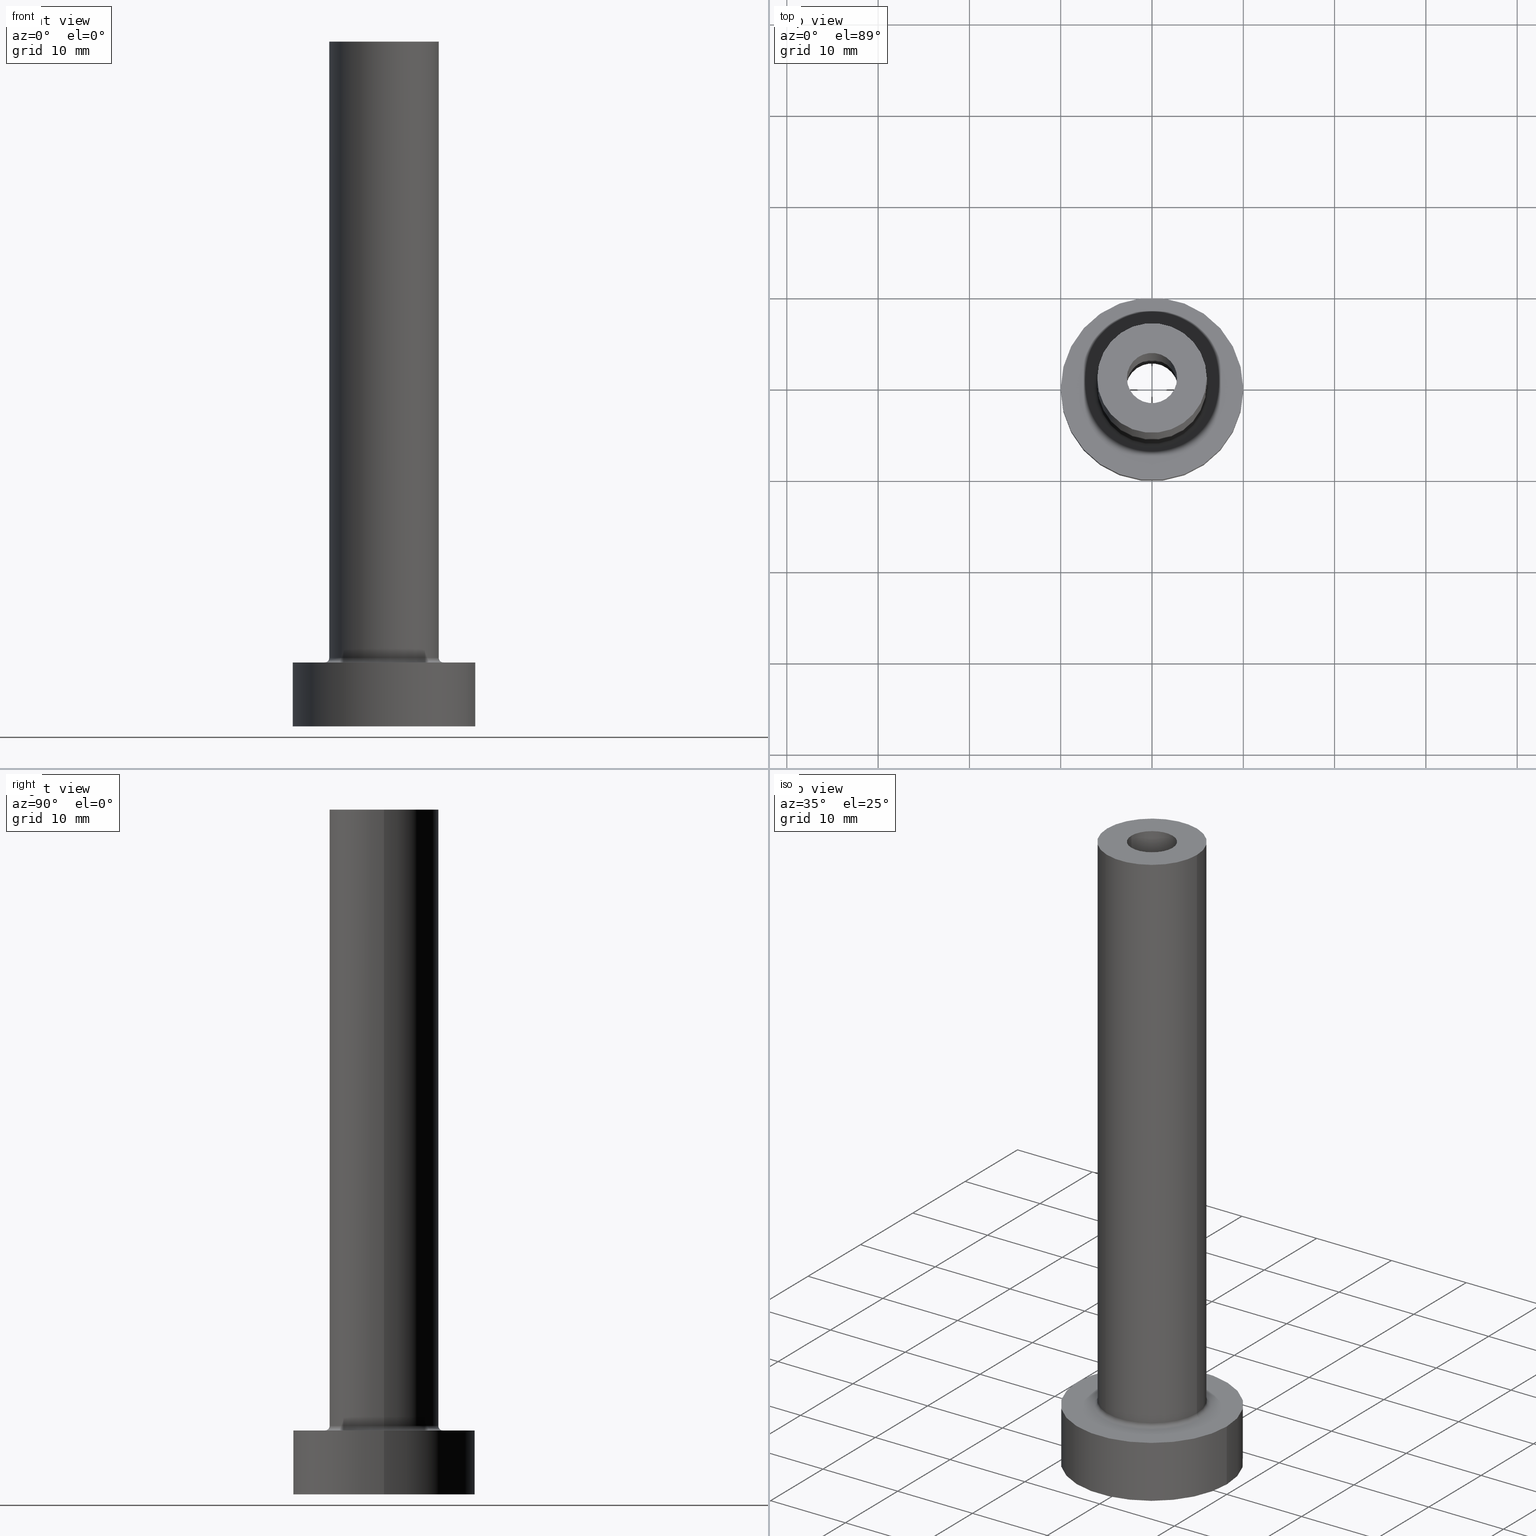
[diagram: canonical four-view strip — front | top / right | iso, engineering-drawing reading convention]
A machine part, canonical four-view strip (front | top / right | iso — engineering-drawing reading convention). The complete STEP part file that produces these views, byte-faithful:
ISO-10303-21;
HEADER;
FILE_DESCRIPTION (( 'STEP AP203' ),
    '1' );
FILE_NAME ('0d5d.STEP',
    '2023-02-13T15:56:50',
    ( '' ),
    ( '' ),
    'SwSTEP 2.0',
    'SolidWorks 2019',
    '' );
FILE_SCHEMA (( 'CONFIG_CONTROL_DESIGN' ));
ENDSEC;

DATA;
#1 = EDGE_LOOP ( 'NONE', ( #352, #125, #88, #289 ) ) ;
#2 = AXIS2_PLACEMENT_3D ( 'NONE', #388, #446, #242 ) ;
#3 = APPLICATION_PROTOCOL_DEFINITION ( 'international standard', 'config_control_design', 1994, #118 ) ;
#4 = PERSON_AND_ORGANIZATION ( #186, #110 ) ;
#5 = LINE ( 'NONE', #12, #45 ) ;
#6 = AXIS2_PLACEMENT_3D ( 'NONE', #36, #260, #403 ) ;
#7 = DIRECTION ( 'NONE',  ( 1.000000000000000000, 0.000000000000000000, 0.000000000000000000 ) ) ;
#8 = CC_DESIGN_PERSON_AND_ORGANIZATION_ASSIGNMENT ( #333, #188, ( #153 ) ) ;
#9 = CARTESIAN_POINT ( 'NONE',  ( -6.000000000000000888, 0.000000000000000000, 75.00000000000001421 ) ) ;
#10 = CARTESIAN_POINT ( 'NONE',  ( 0.000000000000000000, 0.000000000000000000, 0.000000000000000000 ) ) ;
#11 = ORIENTED_EDGE ( 'NONE', *, *, #293, .T. ) ;
#12 = CARTESIAN_POINT ( 'NONE',  ( 2.750000000000000000, 3.367778697655220519E-16, 75.00000000000001421 ) ) ;
#13 = AXIS2_PLACEMENT_3D ( 'NONE', #104, #395, #292 ) ;
#14 = PLANE ( 'NONE',  #278 ) ;
#15 = EDGE_CURVE ( 'NONE', #272, #179, #75, .T. ) ;
#16 = ADVANCED_FACE ( 'NONE', ( #239 ), #246, .F. ) ;
#17 = DIRECTION ( 'NONE',  ( -0.000000000000000000, -0.000000000000000000, -1.000000000000000000 ) ) ;
#18 = CIRCLE ( 'NONE', #313, 6.000000000000000888 ) ;
#19 = DIRECTION ( 'NONE',  ( 1.000000000000000000, 0.000000000000000000, 0.000000000000000000 ) ) ;
#20 = ORIENTED_EDGE ( 'NONE', *, *, #297, .F. ) ;
#21 = CC_DESIGN_PERSON_AND_ORGANIZATION_ASSIGNMENT ( #4, #43, ( #319 ) ) ;
#22 = ADVANCED_FACE ( 'NONE', ( #210 ), #346, .T. ) ;
#23 = EDGE_LOOP ( 'NONE', ( #342, #413 ) ) ;
#24 = PRODUCT_RELATED_PRODUCT_CATEGORY ( 'detail', '', ( #408 ) ) ;
#25 = DATE_AND_TIME ( #345, #55 ) ;
#26 = VERTEX_POINT ( 'NONE', #315 ) ;
#27 = DIRECTION ( 'NONE',  ( -0.000000000000000000, -0.000000000000000000, -1.000000000000000000 ) ) ;
#28 = CARTESIAN_POINT ( 'NONE',  ( 0.000000000000000000, 0.000000000000000000, 7.000000000000000000 ) ) ;
#29 = VERTEX_POINT ( 'NONE', #449 ) ;
#30 = AXIS2_PLACEMENT_3D ( 'NONE', #330, #244, #58 ) ;
#31 = VERTEX_POINT ( 'NONE', #382 ) ;
#32 = ORIENTED_EDGE ( 'NONE', *, *, #428, .F. ) ;
#33 = CALENDAR_DATE ( 2023, 13, 2 ) ;
#34 = ORIENTED_EDGE ( 'NONE', *, *, #375, .T. ) ;
#35 = APPROVAL_ROLE ( '' ) ;
#36 = CARTESIAN_POINT ( 'NONE',  ( 0.000000000000000000, 0.000000000000000000, 75.00000000000001421 ) ) ;
#37 = DIRECTION ( 'NONE',  ( -0.000000000000000000, -0.000000000000000000, -1.000000000000000000 ) ) ;
#38 = DATE_TIME_ROLE ( 'classification_date' ) ;
#39 = PLANE ( 'NONE',  #421 ) ;
#40 = DIRECTION ( 'NONE',  ( -0.000000000000000000, -0.000000000000000000, -1.000000000000000000 ) ) ;
#41 = CIRCLE ( 'NONE', #262, 10.00000000000000000 ) ;
#42 = DIRECTION ( 'NONE',  ( 1.000000000000000000, 0.000000000000000000, -0.000000000000000000 ) ) ;
#43 = PERSON_AND_ORGANIZATION_ROLE ( 'creator' ) ;
#44 = COORDINATED_UNIVERSAL_TIME_OFFSET ( 1, 0, .AHEAD. ) ;
#45 = VECTOR ( 'NONE', #369, 1000.000000000000000 ) ;
#46 = DIRECTION ( 'NONE',  ( -1.000000000000000000, 0.000000000000000000, 0.000000000000000000 ) ) ;
#47 = VECTOR ( 'NONE', #154, 1000.000000000000000 ) ;
#48 = EDGE_CURVE ( 'NONE', #271, #264, #454, .T. ) ;
#49 = CALENDAR_DATE ( 2023, 13, 2 ) ;
#50 = CARTESIAN_POINT ( 'NONE',  ( -2.750000000000000000, 0.000000000000000000, 75.00000000000001421 ) ) ;
#51 = DIRECTION ( 'NONE',  ( 0.000000000000000000, 0.000000000000000000, 1.000000000000000000 ) ) ;
#52 = CARTESIAN_POINT ( 'NONE',  ( 0.000000000000000000, 0.000000000000000000, 7.000000000000000000 ) ) ;
#53 = ORIENTED_EDGE ( 'NONE', *, *, #384, .T. ) ;
#54 = CC_DESIGN_DATE_AND_TIME_ASSIGNMENT ( #25, #163, ( #153 ) ) ;
#55 = LOCAL_TIME ( 16, 56, 50.00000000000000000, #331 ) ;
#56 = EDGE_CURVE ( 'NONE', #374, #427, #197, .T. ) ;
#57 = ORIENTED_EDGE ( 'NONE', *, *, #375, .F. ) ;
#58 = DIRECTION ( 'NONE',  ( -1.000000000000000000, 0.000000000000000000, 0.000000000000000000 ) ) ;
#59 = ORIENTED_EDGE ( 'NONE', *, *, #81, .T. ) ;
#60 = DIRECTION ( 'NONE',  ( 1.000000000000000000, 0.000000000000000000, 0.000000000000000000 ) ) ;
#61 = ORIENTED_EDGE ( 'NONE', *, *, #56, .F. ) ;
#62 = ADVANCED_FACE ( 'NONE', ( #74 ), #219, .F. ) ;
#63 = EDGE_CURVE ( 'NONE', #427, #374, #174, .T. ) ;
#64 = AXIS2_PLACEMENT_3D ( 'NONE', #66, #347, #248 ) ;
#65 = DIRECTION ( 'NONE',  ( 1.000000000000000000, 0.000000000000000000, 0.000000000000000000 ) ) ;
#66 = CARTESIAN_POINT ( 'NONE',  ( 0.000000000000000000, 0.000000000000000000, 7.500000000000007105 ) ) ;
#67 = CIRCLE ( 'NONE', #156, 0.5000000000000004441 ) ;
#68 = PERSON_AND_ORGANIZATION_ROLE ( 'design_supplier' ) ;
#69 = DIRECTION ( 'NONE',  ( 1.000000000000000000, 0.000000000000000000, 0.000000000000000000 ) ) ;
#70 = CYLINDRICAL_SURFACE ( 'NONE', #155, 10.00000000000000000 ) ;
#71 = APPROVAL_STATUS ( 'not_yet_approved' ) ;
#72 = DIRECTION ( 'NONE',  ( 1.000000000000000000, 0.000000000000000000, 0.000000000000000000 ) ) ;
#73 = VERTEX_POINT ( 'NONE', #50 ) ;
#74 = FACE_OUTER_BOUND ( 'NONE', #306, .T. ) ;
#75 = CIRCLE ( 'NONE', #182, 2.899999999999999911 ) ;
#76 = CARTESIAN_POINT ( 'NONE',  ( 0.000000000000000000, 0.000000000000000000, 75.00000000000001421 ) ) ;
#77 = EDGE_CURVE ( 'NONE', #271, #427, #67, .T. ) ;
#78 = CYLINDRICAL_SURFACE ( 'NONE', #406, 2.899999999999999911 ) ;
#79 = CLOSED_SHELL ( 'NONE', ( #112, #410, #16, #241, #276, #422, #434, #238, #22, #460, #391, #243, #339, #62 ) ) ;
#80 = DIRECTION ( 'NONE',  ( -1.000000000000000000, 1.224646799147351482E-16, 0.000000000000000000 ) ) ;
#81 = EDGE_CURVE ( 'NONE', #29, #196, #5, .T. ) ;
#82 = EDGE_CURVE ( 'NONE', #179, #204, #437, .T. ) ;
#83 = CIRCLE ( 'NONE', #294, 2.750000000000000000 ) ;
#84 = APPROVAL_DATE_TIME ( #368, #261 ) ;
#85 = CYLINDRICAL_SURFACE ( 'NONE', #414, 10.00000000000000000 ) ;
#86 = DIRECTION ( 'NONE',  ( -0.000000000000000000, -0.000000000000000000, -1.000000000000000000 ) ) ;
#87 = CARTESIAN_POINT ( 'NONE',  ( 10.00000000000000000, 1.224646799147353256E-15, 7.000000000000000000 ) ) ;
#88 = ORIENTED_EDGE ( 'NONE', *, *, #82, .T. ) ;
#89 = EDGE_CURVE ( 'NONE', #73, #29, #283, .T. ) ;
#90 = EDGE_CURVE ( 'NONE', #26, #240, #168, .T. ) ;
#91 = ORIENTED_EDGE ( 'NONE', *, *, #351, .F. ) ;
#92 = UNCERTAINTY_MEASURE_WITH_UNIT (LENGTH_MEASURE( 1.000000000000000082E-05 ), #137, 'distance_accuracy_value', 'NONE');
#93 = EDGE_CURVE ( 'NONE', #240, #148, #404, .T. ) ;
#94 = ORIENTED_EDGE ( 'NONE', *, *, #202, .T. ) ;
#95 = APPLICATION_CONTEXT ( 'configuration controlled 3d designs of mechanical parts and assemblies' ) ;
#96 = AXIS2_PLACEMENT_3D ( 'NONE', #52, #269, #354 ) ;
#97 = ORIENTED_EDGE ( 'NONE', *, *, #191, .T. ) ;
#98 = VERTEX_POINT ( 'NONE', #337 ) ;
#99 = CARTESIAN_POINT ( 'NONE',  ( 0.000000000000000000, 0.000000000000000000, 38.20243866176397063 ) ) ;
#100 = ORIENTED_EDGE ( 'NONE', *, *, #181, .F. ) ;
#101 = LINE ( 'NONE', #171, #411 ) ;
#102 = ORIENTED_EDGE ( 'NONE', *, *, #191, .F. ) ;
#103 = LOCAL_TIME ( 16, 56, 50.00000000000000000, #44 ) ;
#104 = CARTESIAN_POINT ( 'NONE',  ( 0.000000000000000000, 0.000000000000000000, 0.000000000000000000 ) ) ;
#105 = DIRECTION ( 'NONE',  ( 1.000000000000000000, 0.000000000000000000, 0.000000000000000000 ) ) ;
#106 = CARTESIAN_POINT ( 'NONE',  ( 0.000000000000000000, 0.000000000000000000, 38.20243866176397063 ) ) ;
#107 = MECHANICAL_CONTEXT ( 'NONE', #118, 'mechanical' ) ;
#108 = VECTOR ( 'NONE', #113, 1000.000000000000000 ) ;
#109 = EDGE_LOOP ( 'NONE', ( #304, #338 ) ) ;
#110 = ORGANIZATION ( 'NEUR�EN�', 'NEUR�EN�', '' ) ;
#111 = CARTESIAN_POINT ( 'NONE',  ( 10.00000000000000000, 1.224646799147353256E-15, 7.000000000000000000 ) ) ;
#112 = ADVANCED_FACE ( 'NONE', ( #135 ), #185, .F. ) ;
#113 = DIRECTION ( 'NONE',  ( -0.000000000000000000, -0.000000000000000000, -1.000000000000000000 ) ) ;
#114 = DIRECTION ( 'NONE',  ( 1.000000000000000000, 0.000000000000000000, 0.000000000000000000 ) ) ;
#115 = AXIS2_PLACEMENT_3D ( 'NONE', #247, #27, #165 ) ;
#116 = CIRCLE ( 'NONE', #420, 6.000000000000000888 ) ;
#117 = DIRECTION ( 'NONE',  ( 0.000000000000000000, 0.000000000000000000, 1.000000000000000000 ) ) ;
#118 = APPLICATION_CONTEXT ( 'configuration controlled 3d designs of mechanical parts and assemblies' ) ;
#119 = AXIS2_PLACEMENT_3D ( 'NONE', #183, #142, #80 ) ;
#120 = DIRECTION ( 'NONE',  ( 1.000000000000000000, 0.000000000000000000, 0.000000000000000000 ) ) ;
#121 = ORIENTED_EDGE ( 'NONE', *, *, #438, .T. ) ;
#122 = SECURITY_CLASSIFICATION_LEVEL ( 'unclassified' ) ;
#123 = VERTEX_POINT ( 'NONE', #457 ) ;
#124 = CARTESIAN_POINT ( 'NONE',  ( 0.000000000000000000, 0.000000000000000000, 30.00000000000001421 ) ) ;
#125 = ORIENTED_EDGE ( 'NONE', *, *, #15, .T. ) ;
#126 = DIRECTION ( 'NONE',  ( 0.000000000000000000, 0.000000000000000000, 1.000000000000000000 ) ) ;
#127 = DESIGN_CONTEXT ( 'detailed design', #95, 'design' ) ;
#128 = CARTESIAN_POINT ( 'NONE',  ( 0.000000000000000000, 0.000000000000000000, 30.00000000000001421 ) ) ;
#129 = DIRECTION ( 'NONE',  ( -0.000000000000000000, -0.000000000000000000, -1.000000000000000000 ) ) ;
#130 = CARTESIAN_POINT ( 'NONE',  ( 0.000000000000000000, 0.000000000000000000, 0.000000000000000000 ) ) ;
#131 = ORIENTED_EDGE ( 'NONE', *, *, #307, .T. ) ;
#132 = CIRCLE ( 'NONE', #226, 2.750000000000000000 ) ;
#133 = EDGE_LOOP ( 'NONE', ( #389, #376, #442, #61 ) ) ;
#134 = EDGE_CURVE ( 'NONE', #179, #272, #432, .T. ) ;
#135 = FACE_OUTER_BOUND ( 'NONE', #334, .T. ) ;
#136 = VECTOR ( 'NONE', #141, 1000.000000000000000 ) ;
#137 =( LENGTH_UNIT ( ) NAMED_UNIT ( * ) SI_UNIT ( .MILLI., .METRE. ) );
#138 = LINE ( 'NONE', #9, #136 ) ;
#139 = EDGE_CURVE ( 'NONE', #123, #204, #355, .T. ) ;
#140 = AXIS2_PLACEMENT_3D ( 'NONE', #263, #86, #356 ) ;
#141 = DIRECTION ( 'NONE',  ( -0.000000000000000000, -0.000000000000000000, -1.000000000000000000 ) ) ;
#142 = DIRECTION ( 'NONE',  ( 1.224646799147353207E-16, 1.000000000000000000, -0.000000000000000000 ) ) ;
#143 = CARTESIAN_POINT ( 'NONE',  ( 0.000000000000000000, 0.000000000000000000, 7.500000000000007105 ) ) ;
#144 = AXIS2_PLACEMENT_3D ( 'NONE', #160, #209, #120 ) ;
#145 = CARTESIAN_POINT ( 'NONE',  ( -10.00000000000000000, 0.000000000000000000, 7.000000000000000000 ) ) ;
#146 = APPROVAL_ROLE ( '' ) ;
#147 = DATE_AND_TIME ( #253, #373 ) ;
#148 = VERTEX_POINT ( 'NONE', #314 ) ;
#149 = CIRCLE ( 'NONE', #326, 2.899999999999999911 ) ;
#150 = DIRECTION ( 'NONE',  ( 1.000000000000000000, 0.000000000000000000, 0.000000000000000000 ) ) ;
#151 = CARTESIAN_POINT ( 'NONE',  ( 0.000000000000000000, 0.000000000000000000, 7.000000000000000000 ) ) ;
#152 = PERSON_AND_ORGANIZATION_ROLE ( 'design_owner' ) ;
#153 = PRODUCT_DEFINITION ( 'NEZN�M�', '', #319, #127 ) ;
#154 = DIRECTION ( 'NONE',  ( -0.000000000000000000, -0.000000000000000000, -1.000000000000000000 ) ) ;
#155 = AXIS2_PLACEMENT_3D ( 'NONE', #28, #166, #383 ) ;
#156 = AXIS2_PLACEMENT_3D ( 'NONE', #300, #232, #394 ) ;
#157 = ORIENTED_EDGE ( 'NONE', *, *, #202, .F. ) ;
#158 = CARTESIAN_POINT ( 'NONE',  ( -2.899999999999999911, 0.000000000000000000, 30.00000000000001421 ) ) ;
#159 = VERTEX_POINT ( 'NONE', #194 ) ;
#160 = CARTESIAN_POINT ( 'NONE',  ( 0.000000000000000000, 0.000000000000000000, 75.00000000000001421 ) ) ;
#161 = AXIS2_PLACEMENT_3D ( 'NONE', #316, #251, #349 ) ;
#162 = LOCAL_TIME ( 16, 56, 50.00000000000000000, #215 ) ;
#163 = DATE_TIME_ROLE ( 'creation_date' ) ;
#164 = PERSON_AND_ORGANIZATION ( #186, #110 ) ;
#165 = DIRECTION ( 'NONE',  ( -1.000000000000000000, 0.000000000000000000, 0.000000000000000000 ) ) ;
#166 = DIRECTION ( 'NONE',  ( -0.000000000000000000, -0.000000000000000000, -1.000000000000000000 ) ) ;
#167 = EDGE_LOOP ( 'NONE', ( #237, #381 ) ) ;
#168 = CIRCLE ( 'NONE', #96, 10.00000000000000000 ) ;
#169 = CIRCLE ( 'NONE', #144, 6.000000000000000888 ) ;
#170 = ORIENTED_EDGE ( 'NONE', *, *, #297, .T. ) ;
#171 = CARTESIAN_POINT ( 'NONE',  ( -2.750000000000000000, 0.000000000000000000, 75.00000000000001421 ) ) ;
#172 = EDGE_CURVE ( 'NONE', #159, #148, #41, .T. ) ;
#173 = CARTESIAN_POINT ( 'NONE',  ( 0.000000000000000000, 0.000000000000000000, 0.000000000000000000 ) ) ;
#174 = CIRCLE ( 'NONE', #317, 6.500000000000000888 ) ;
#175 = TOROIDAL_SURFACE ( 'NONE', #64, 6.500000000000000888, 0.5000000000000000000 ) ;
#176 = PERSON_AND_ORGANIZATION ( #186, #110 ) ;
#177 = CIRCLE ( 'NONE', #245, 10.00000000000000000 ) ;
#178 = ORIENTED_EDGE ( 'NONE', *, *, #93, .T. ) ;
#179 = VERTEX_POINT ( 'NONE', #158 ) ;
#180 = CARTESIAN_POINT ( 'NONE',  ( 0.000000000000000000, 0.000000000000000000, 7.000000000000000000 ) ) ;
#181 = EDGE_CURVE ( 'NONE', #31, #271, #335, .T. ) ;
#182 = AXIS2_PLACEMENT_3D ( 'NONE', #386, #458, #419 ) ;
#183 = CARTESIAN_POINT ( 'NONE',  ( -6.500000000000000888, 7.960204194457796463E-16, 7.500000000000007105 ) ) ;
#184 = LINE ( 'NONE', #145, #108 ) ;
#185 = CYLINDRICAL_SURFACE ( 'NONE', #30, 2.750000000000000000 ) ;
#186 = PERSON ( 'NEUR�EN�', 'NEUR�EN�', 'NEUR�EN�', ('NEUR�EN�'), ('NEUR�EN�'), ('NEUR�EN�') ) ;
#187 = APPROVAL_PERSON_ORGANIZATION ( #310, #348, #358 ) ;
#188 = PERSON_AND_ORGANIZATION_ROLE ( 'creator' ) ;
#189 = PERSON_AND_ORGANIZATION ( #186, #110 ) ;
#190 = CARTESIAN_POINT ( 'NONE',  ( -2.899999999999999911, 0.000000000000000000, 0.000000000000000000 ) ) ;
#191 = EDGE_CURVE ( 'NONE', #98, #196, #132, .T. ) ;
#192 = ORIENTED_EDGE ( 'NONE', *, *, #93, .F. ) ;
#193 = AXIS2_PLACEMENT_3D ( 'NONE', #76, #117, #363 ) ;
#194 = CARTESIAN_POINT ( 'NONE',  ( -10.00000000000000000, 0.000000000000000000, 0.000000000000000000 ) ) ;
#195 = CARTESIAN_POINT ( 'NONE',  ( 2.899999999999999911, 3.551475717527323832E-16, 30.00000000000001421 ) ) ;
#196 = VERTEX_POINT ( 'NONE', #235 ) ;
#197 = CIRCLE ( 'NONE', #423, 6.500000000000000888 ) ;
#198 = DIRECTION ( 'NONE',  ( -1.000000000000000000, 0.000000000000000000, 0.000000000000000000 ) ) ;
#199 = APPROVAL_PERSON_ORGANIZATION ( #189, #261, #146 ) ;
#200 = CC_DESIGN_SECURITY_CLASSIFICATION ( #273, ( #319 ) ) ;
#201 = ORIENTED_EDGE ( 'NONE', *, *, #438, .F. ) ;
#202 = EDGE_CURVE ( 'NONE', #196, #98, #83, .T. ) ;
#203 = DIRECTION ( 'NONE',  ( 1.000000000000000000, 0.000000000000000000, 0.000000000000000000 ) ) ;
#204 = VERTEX_POINT ( 'NONE', #190 ) ;
#205 = VERTEX_POINT ( 'NONE', #279 ) ;
#206 = VECTOR ( 'NONE', #439, 1000.000000000000000 ) ;
#207 = ORIENTED_EDGE ( 'NONE', *, *, #81, .F. ) ;
#208 = MANIFOLD_SOLID_BREP ( 'Odebrat vysunut�m4', #79 ) ;
#209 = DIRECTION ( 'NONE',  ( 0.000000000000000000, 0.000000000000000000, 1.000000000000000000 ) ) ;
#210 = FACE_OUTER_BOUND ( 'NONE', #445, .T. ) ;
#211 = FACE_OUTER_BOUND ( 'NONE', #322, .T. ) ;
#212 = CARTESIAN_POINT ( 'NONE',  ( 0.000000000000000000, 0.000000000000000000, 7.000000000000000000 ) ) ;
#213 = DIRECTION ( 'NONE',  ( 0.000000000000000000, 0.000000000000000000, -1.000000000000000000 ) ) ;
#214 = COORDINATED_UNIVERSAL_TIME_OFFSET ( 1, 0, .AHEAD. ) ;
#215 = COORDINATED_UNIVERSAL_TIME_OFFSET ( 1, 0, .AHEAD. ) ;
#216 = ORIENTED_EDGE ( 'NONE', *, *, #90, .T. ) ;
#217 = DIRECTION ( 'NONE',  ( 0.000000000000000000, 0.000000000000000000, 1.000000000000000000 ) ) ;
#218 =( GEOMETRIC_REPRESENTATION_CONTEXT ( 3 ) GLOBAL_UNCERTAINTY_ASSIGNED_CONTEXT ( ( #92 ) ) GLOBAL_UNIT_ASSIGNED_CONTEXT ( ( #137, #390, #353 ) ) REPRESENTATION_CONTEXT ( 'NONE', 'WORKASPACE' ) );
#219 = CYLINDRICAL_SURFACE ( 'NONE', #6, 2.750000000000000000 ) ;
#220 = CARTESIAN_POINT ( 'NONE',  ( -2.899999999999999911, 0.000000000000000000, 38.20243866176397063 ) ) ;
#221 = FACE_OUTER_BOUND ( 'NONE', #23, .T. ) ;
#222 = CARTESIAN_POINT ( 'NONE',  ( 0.000000000000000000, 0.000000000000000000, 7.000000000000000000 ) ) ;
#223 = AXIS2_PLACEMENT_3D ( 'NONE', #452, #288, #69 ) ;
#224 = VECTOR ( 'NONE', #303, 1000.000000000000000 ) ;
#225 = FACE_BOUND ( 'NONE', #280, .T. ) ;
#226 = AXIS2_PLACEMENT_3D ( 'NONE', #128, #51, #448 ) ;
#227 = DIRECTION ( 'NONE',  ( 0.000000000000000000, 0.000000000000000000, 1.000000000000000000 ) ) ;
#228 = PERSON_AND_ORGANIZATION ( #186, #110 ) ;
#229 = CARTESIAN_POINT ( 'NONE',  ( 0.000000000000000000, 0.000000000000000000, 7.000000000000000000 ) ) ;
#230 = CC_DESIGN_PERSON_AND_ORGANIZATION_ASSIGNMENT ( #228, #152, ( #408 ) ) ;
#231 = APPROVAL_STATUS ( 'not_yet_approved' ) ;
#232 = DIRECTION ( 'NONE',  ( 0.000000000000000000, -1.000000000000000000, 0.000000000000000000 ) ) ;
#233 = CARTESIAN_POINT ( 'NONE',  ( 6.000000000000000888, 7.347880794884120722E-16, 75.00000000000001421 ) ) ;
#234 = EDGE_CURVE ( 'NONE', #204, #123, #149, .T. ) ;
#235 = CARTESIAN_POINT ( 'NONE',  ( 2.750000000000000000, 3.367778697655220519E-16, 30.00000000000001421 ) ) ;
#236 = CARTESIAN_POINT ( 'NONE',  ( -6.000000000000000888, 0.000000000000000000, 7.500000000000007105 ) ) ;
#237 = ORIENTED_EDGE ( 'NONE', *, *, #89, .F. ) ;
#238 = ADVANCED_FACE ( 'NONE', ( #301, #221 ), #318, .F. ) ;
#239 = FACE_OUTER_BOUND ( 'NONE', #378, .T. ) ;
#240 = VERTEX_POINT ( 'NONE', #111 ) ;
#241 = ADVANCED_FACE ( 'NONE', ( #433 ), #291, .T. ) ;
#242 = DIRECTION ( 'NONE',  ( 1.000000000000000000, 0.000000000000000000, 0.000000000000000000 ) ) ;
#243 = ADVANCED_FACE ( 'NONE', ( #398 ), #78, .F. ) ;
#244 = DIRECTION ( 'NONE',  ( 0.000000000000000000, 0.000000000000000000, -1.000000000000000000 ) ) ;
#245 = AXIS2_PLACEMENT_3D ( 'NONE', #180, #325, #7 ) ;
#246 = TOROIDAL_SURFACE ( 'NONE', #360, 6.500000000000000888, 0.5000000000000000000 ) ;
#247 = CARTESIAN_POINT ( 'NONE',  ( 0.000000000000000000, 0.000000000000000000, 75.00000000000001421 ) ) ;
#248 = DIRECTION ( 'NONE',  ( 1.000000000000000000, 0.000000000000000000, 0.000000000000000000 ) ) ;
#249 = EDGE_LOOP ( 'NONE', ( #344, #444 ) ) ;
#250 = EDGE_CURVE ( 'NONE', #264, #374, #401, .T. ) ;
#251 = DIRECTION ( 'NONE',  ( 0.000000000000000000, 0.000000000000000000, 1.000000000000000000 ) ) ;
#252 = AXIS2_PLACEMENT_3D ( 'NONE', #173, #37, #19 ) ;
#253 = CALENDAR_DATE ( 2023, 13, 2 ) ;
#254 = APPROVAL_DATE_TIME ( #287, #299 ) ;
#255 = ORIENTED_EDGE ( 'NONE', *, *, #134, .T. ) ;
#256 = FACE_OUTER_BOUND ( 'NONE', #311, .T. ) ;
#257 = DIRECTION ( 'NONE',  ( 0.000000000000000000, 0.000000000000000000, 1.000000000000000000 ) ) ;
#258 = PLANE ( 'NONE',  #455 ) ;
#259 = SHAPE_DEFINITION_REPRESENTATION ( #341, #461 ) ;
#260 = DIRECTION ( 'NONE',  ( 0.000000000000000000, 0.000000000000000000, -1.000000000000000000 ) ) ;
#261 = APPROVAL ( #231, 'NEUR�EN�' ) ;
#262 = AXIS2_PLACEMENT_3D ( 'NONE', #451, #418, #203 ) ;
#263 = CARTESIAN_POINT ( 'NONE',  ( 0.000000000000000000, 0.000000000000000000, 75.00000000000001421 ) ) ;
#264 = VERTEX_POINT ( 'NONE', #236 ) ;
#265 = FACE_OUTER_BOUND ( 'NONE', #350, .T. ) ;
#266 = CIRCLE ( 'NONE', #323, 10.00000000000000000 ) ;
#267 = DIRECTION ( 'NONE',  ( 0.000000000000000000, 0.000000000000000000, 1.000000000000000000 ) ) ;
#268 = EDGE_LOOP ( 'NONE', ( #201, #178, #372, #20 ) ) ;
#269 = DIRECTION ( 'NONE',  ( 0.000000000000000000, 0.000000000000000000, 1.000000000000000000 ) ) ;
#270 = ORIENTED_EDGE ( 'NONE', *, *, #77, .F. ) ;
#271 = VERTEX_POINT ( 'NONE', #371 ) ;
#272 = VERTEX_POINT ( 'NONE', #195 ) ;
#273 = SECURITY_CLASSIFICATION ( '', '', #122 ) ;
#274 = ORIENTED_EDGE ( 'NONE', *, *, #82, .F. ) ;
#275 = APPROVAL_STATUS ( 'not_yet_approved' ) ;
#276 = ADVANCED_FACE ( 'NONE', ( #400 ), #85, .T. ) ;
#277 = ORIENTED_EDGE ( 'NONE', *, *, #250, .T. ) ;
#278 = AXIS2_PLACEMENT_3D ( 'NONE', #298, #267, #402 ) ;
#279 = CARTESIAN_POINT ( 'NONE',  ( -6.000000000000000888, 0.000000000000000000, 75.00000000000001421 ) ) ;
#280 = EDGE_LOOP ( 'NONE', ( #97, #94 ) ) ;
#281 = CARTESIAN_POINT ( 'NONE',  ( 0.000000000000000000, 0.000000000000000000, 75.00000000000001421 ) ) ;
#282 = ORIENTED_EDGE ( 'NONE', *, *, #90, .F. ) ;
#283 = CIRCLE ( 'NONE', #193, 2.750000000000000000 ) ;
#284 = DIRECTION ( 'NONE',  ( 0.000000000000000000, 0.000000000000000000, 1.000000000000000000 ) ) ;
#285 = FACE_OUTER_BOUND ( 'NONE', #133, .T. ) ;
#286 = CC_DESIGN_DATE_AND_TIME_ASSIGNMENT ( #385, #38, ( #273 ) ) ;
#287 = DATE_AND_TIME ( #424, #162 ) ;
#288 = DIRECTION ( 'NONE',  ( 0.000000000000000000, 0.000000000000000000, 1.000000000000000000 ) ) ;
#289 = ORIENTED_EDGE ( 'NONE', *, *, #234, .T. ) ;
#290 = CIRCLE ( 'NONE', #161, 2.750000000000000000 ) ;
#291 = CYLINDRICAL_SURFACE ( 'NONE', #140, 6.000000000000000888 ) ;
#292 = DIRECTION ( 'NONE',  ( 1.000000000000000000, 0.000000000000000000, 0.000000000000000000 ) ) ;
#293 = EDGE_CURVE ( 'NONE', #272, #123, #336, .T. ) ;
#294 = AXIS2_PLACEMENT_3D ( 'NONE', #124, #284, #367 ) ;
#295 = FACE_BOUND ( 'NONE', #167, .T. ) ;
#296 = DIRECTION ( 'NONE',  ( 0.000000000000000000, 0.000000000000000000, 1.000000000000000000 ) ) ;
#297 = EDGE_CURVE ( 'NONE', #26, #159, #184, .T. ) ;
#298 = CARTESIAN_POINT ( 'NONE',  ( 0.000000000000000000, 0.000000000000000000, 30.00000000000001421 ) ) ;
#299 = APPROVAL ( #71, 'NEUR�EN�' ) ;
#300 = CARTESIAN_POINT ( 'NONE',  ( 6.500000000000000888, 0.000000000000000000, 7.500000000000007105 ) ) ;
#301 = FACE_BOUND ( 'NONE', #415, .T. ) ;
#302 = DIRECTION ( 'NONE',  ( -0.000000000000000000, -0.000000000000000000, -1.000000000000000000 ) ) ;
#303 = DIRECTION ( 'NONE',  ( 0.000000000000000000, 0.000000000000000000, -1.000000000000000000 ) ) ;
#304 = ORIENTED_EDGE ( 'NONE', *, *, #428, .T. ) ;
#305 = EDGE_CURVE ( 'NONE', #148, #159, #266, .T. ) ;
#306 = EDGE_LOOP ( 'NONE', ( #207, #53, #34, #157 ) ) ;
#307 = EDGE_CURVE ( 'NONE', #264, #271, #18, .T. ) ;
#308 = ORIENTED_EDGE ( 'NONE', *, *, #181, .T. ) ;
#309 = FACE_BOUND ( 'NONE', #249, .T. ) ;
#310 = PERSON_AND_ORGANIZATION ( #186, #110 ) ;
#311 = EDGE_LOOP ( 'NONE', ( #216, #121 ) ) ;
#312 = CYLINDRICAL_SURFACE ( 'NONE', #324, 2.899999999999999911 ) ;
#313 = AXIS2_PLACEMENT_3D ( 'NONE', #143, #227, #436 ) ;
#314 = CARTESIAN_POINT ( 'NONE',  ( 10.00000000000000000, 1.224646799147353256E-15, 0.000000000000000000 ) ) ;
#315 = CARTESIAN_POINT ( 'NONE',  ( -10.00000000000000000, 0.000000000000000000, 7.000000000000000000 ) ) ;
#316 = CARTESIAN_POINT ( 'NONE',  ( 0.000000000000000000, 0.000000000000000000, 75.00000000000001421 ) ) ;
#317 = AXIS2_PLACEMENT_3D ( 'NONE', #229, #364, #105 ) ;
#318 = PLANE ( 'NONE',  #387 ) ;
#319 = PRODUCT_DEFINITION_FORMATION_WITH_SPECIFIED_SOURCE ( 'LIBOVOLN�', '', #408, .NOT_KNOWN. ) ;
#320 = APPROVAL_DATE_TIME ( #147, #348 ) ;
#321 = ORIENTED_EDGE ( 'NONE', *, *, #441, .F. ) ;
#322 = EDGE_LOOP ( 'NONE', ( #192, #282, #170, #397 ) ) ;
#323 = AXIS2_PLACEMENT_3D ( 'NONE', #10, #296, #114 ) ;
#324 = AXIS2_PLACEMENT_3D ( 'NONE', #99, #213, #426 ) ;
#325 = DIRECTION ( 'NONE',  ( 0.000000000000000000, 0.000000000000000000, 1.000000000000000000 ) ) ;
#326 = AXIS2_PLACEMENT_3D ( 'NONE', #332, #17, #150 ) ;
#327 = CARTESIAN_POINT ( 'NONE',  ( 0.000000000000000000, 0.000000000000000000, 75.00000000000001421 ) ) ;
#328 = DIRECTION ( 'NONE',  ( 1.000000000000000000, 0.000000000000000000, -0.000000000000000000 ) ) ;
#329 = CARTESIAN_POINT ( 'NONE',  ( 2.899999999999999911, 3.551475717527323832E-16, 38.20243866176397063 ) ) ;
#330 = CARTESIAN_POINT ( 'NONE',  ( 0.000000000000000000, 0.000000000000000000, 75.00000000000001421 ) ) ;
#331 = COORDINATED_UNIVERSAL_TIME_OFFSET ( 1, 0, .AHEAD. ) ;
#332 = CARTESIAN_POINT ( 'NONE',  ( 0.000000000000000000, 0.000000000000000000, 0.000000000000000000 ) ) ;
#333 = PERSON_AND_ORGANIZATION ( #186, #110 ) ;
#334 = EDGE_LOOP ( 'NONE', ( #340, #59, #102, #57 ) ) ;
#335 = LINE ( 'NONE', #233, #47 ) ;
#336 = LINE ( 'NONE', #329, #206 ) ;
#337 = CARTESIAN_POINT ( 'NONE',  ( -2.750000000000000000, 0.000000000000000000, 30.00000000000001421 ) ) ;
#338 = ORIENTED_EDGE ( 'NONE', *, *, #351, .T. ) ;
#339 = ADVANCED_FACE ( 'NONE', ( #225, #265 ), #14, .F. ) ;
#340 = ORIENTED_EDGE ( 'NONE', *, *, #89, .T. ) ;
#341 = PRODUCT_DEFINITION_SHAPE ( 'NONE', 'NONE',  #153 ) ;
#342 = ORIENTED_EDGE ( 'NONE', *, *, #172, .F. ) ;
#343 = ORIENTED_EDGE ( 'NONE', *, *, #134, .F. ) ;
#344 = ORIENTED_EDGE ( 'NONE', *, *, #63, .T. ) ;
#345 = CALENDAR_DATE ( 2023, 13, 2 ) ;
#346 = CYLINDRICAL_SURFACE ( 'NONE', #115, 6.000000000000000888 ) ;
#347 = DIRECTION ( 'NONE',  ( 0.000000000000000000, 0.000000000000000000, 1.000000000000000000 ) ) ;
#348 = APPROVAL ( #275, 'NEUR�EN�' ) ;
#349 = DIRECTION ( 'NONE',  ( 1.000000000000000000, 0.000000000000000000, 0.000000000000000000 ) ) ;
#350 = EDGE_LOOP ( 'NONE', ( #343, #443 ) ) ;
#351 = EDGE_CURVE ( 'NONE', #31, #205, #169, .T. ) ;
#352 = ORIENTED_EDGE ( 'NONE', *, *, #293, .F. ) ;
#353 =( NAMED_UNIT ( * ) SI_UNIT ( $, .STERADIAN. ) SOLID_ANGLE_UNIT ( ) );
#354 = DIRECTION ( 'NONE',  ( 1.000000000000000000, 0.000000000000000000, 0.000000000000000000 ) ) ;
#355 = CIRCLE ( 'NONE', #252, 2.899999999999999911 ) ;
#356 = DIRECTION ( 'NONE',  ( -1.000000000000000000, 0.000000000000000000, 0.000000000000000000 ) ) ;
#357 = DIRECTION ( 'NONE',  ( 0.000000000000000000, 0.000000000000000000, 1.000000000000000000 ) ) ;
#358 = APPROVAL_ROLE ( '' ) ;
#359 = LOCAL_TIME ( 16, 56, 50.00000000000000000, #214 ) ;
#360 = AXIS2_PLACEMENT_3D ( 'NONE', #429, #379, #65 ) ;
#361 = FACE_OUTER_BOUND ( 'NONE', #109, .T. ) ;
#362 = CC_DESIGN_PERSON_AND_ORGANIZATION_ASSIGNMENT ( #164, #365, ( #273 ) ) ;
#363 = DIRECTION ( 'NONE',  ( 1.000000000000000000, 0.000000000000000000, 0.000000000000000000 ) ) ;
#364 = DIRECTION ( 'NONE',  ( -0.000000000000000000, -0.000000000000000000, -1.000000000000000000 ) ) ;
#365 = PERSON_AND_ORGANIZATION_ROLE ( 'classification_officer' ) ;
#366 = APPROVAL_PERSON_ORGANIZATION ( #176, #299, #35 ) ;
#367 = DIRECTION ( 'NONE',  ( 1.000000000000000000, 0.000000000000000000, 0.000000000000000000 ) ) ;
#368 = DATE_AND_TIME ( #49, #359 ) ;
#369 = DIRECTION ( 'NONE',  ( 0.000000000000000000, 0.000000000000000000, -1.000000000000000000 ) ) ;
#370 = ORIENTED_EDGE ( 'NONE', *, *, #441, .T. ) ;
#371 = CARTESIAN_POINT ( 'NONE',  ( 6.000000000000000888, 7.347880794884120722E-16, 7.500000000000007105 ) ) ;
#372 = ORIENTED_EDGE ( 'NONE', *, *, #305, .T. ) ;
#373 = LOCAL_TIME ( 16, 56, 50.00000000000000000, #396 ) ;
#374 = VERTEX_POINT ( 'NONE', #412 ) ;
#375 = EDGE_CURVE ( 'NONE', #73, #98, #101, .T. ) ;
#376 = ORIENTED_EDGE ( 'NONE', *, *, #48, .F. ) ;
#377 = EDGE_LOOP ( 'NONE', ( #255, #11, #405, #274 ) ) ;
#378 = EDGE_LOOP ( 'NONE', ( #459, #277, #416, #270 ) ) ;
#379 = DIRECTION ( 'NONE',  ( 0.000000000000000000, 0.000000000000000000, 1.000000000000000000 ) ) ;
#380 = DIRECTION ( 'NONE',  ( 0.000000000000000000, 0.000000000000000000, -1.000000000000000000 ) ) ;
#381 = ORIENTED_EDGE ( 'NONE', *, *, #384, .F. ) ;
#382 = CARTESIAN_POINT ( 'NONE',  ( 6.000000000000000888, 7.347880794884120722E-16, 75.00000000000001421 ) ) ;
#383 = DIRECTION ( 'NONE',  ( -1.000000000000000000, 0.000000000000000000, 0.000000000000000000 ) ) ;
#384 = EDGE_CURVE ( 'NONE', #29, #73, #290, .T. ) ;
#385 = DATE_AND_TIME ( #33, #103 ) ;
#386 = CARTESIAN_POINT ( 'NONE',  ( 0.000000000000000000, 0.000000000000000000, 30.00000000000001421 ) ) ;
#387 = AXIS2_PLACEMENT_3D ( 'NONE', #130, #217, #328 ) ;
#388 = CARTESIAN_POINT ( 'NONE',  ( 0.000000000000000000, 0.000000000000000000, 30.00000000000001421 ) ) ;
#389 = ORIENTED_EDGE ( 'NONE', *, *, #250, .F. ) ;
#390 =( NAMED_UNIT ( * ) PLANE_ANGLE_UNIT ( ) SI_UNIT ( $, .RADIAN. ) );
#391 = ADVANCED_FACE ( 'NONE', ( #285 ), #175, .F. ) ;
#392 = PERSON_AND_ORGANIZATION ( #186, #110 ) ;
#393 = DIRECTION ( 'NONE',  ( 1.000000000000000000, 0.000000000000000000, -0.000000000000000000 ) ) ;
#394 = DIRECTION ( 'NONE',  ( 0.000000000000000000, 0.000000000000000000, -1.000000000000000000 ) ) ;
#395 = DIRECTION ( 'NONE',  ( 0.000000000000000000, 0.000000000000000000, 1.000000000000000000 ) ) ;
#396 = COORDINATED_UNIVERSAL_TIME_OFFSET ( 1, 0, .AHEAD. ) ;
#397 = ORIENTED_EDGE ( 'NONE', *, *, #172, .T. ) ;
#398 = FACE_OUTER_BOUND ( 'NONE', #1, .T. ) ;
#399 = CC_DESIGN_PERSON_AND_ORGANIZATION_ASSIGNMENT ( #392, #68, ( #319 ) ) ;
#400 = FACE_OUTER_BOUND ( 'NONE', #268, .T. ) ;
#401 = CIRCLE ( 'NONE', #119, 0.5000000000000004441 ) ;
#402 = DIRECTION ( 'NONE',  ( 1.000000000000000000, 0.000000000000000000, -0.000000000000000000 ) ) ;
#403 = DIRECTION ( 'NONE',  ( -1.000000000000000000, 0.000000000000000000, 0.000000000000000000 ) ) ;
#404 = LINE ( 'NONE', #87, #447 ) ;
#405 = ORIENTED_EDGE ( 'NONE', *, *, #139, .T. ) ;
#406 = AXIS2_PLACEMENT_3D ( 'NONE', #106, #431, #46 ) ;
#407 = EDGE_LOOP ( 'NONE', ( #91, #308, #409, #321 ) ) ;
#408 = PRODUCT ( '0d5d', '0d5d', '', ( #107 ) ) ;
#409 = ORIENTED_EDGE ( 'NONE', *, *, #48, .T. ) ;
#410 = ADVANCED_FACE ( 'NONE', ( #453 ), #312, .F. ) ;
#411 = VECTOR ( 'NONE', #380, 1000.000000000000000 ) ;
#412 = CARTESIAN_POINT ( 'NONE',  ( -6.500000000000000888, 7.960204194457796463E-16, 7.000000000000002665 ) ) ;
#413 = ORIENTED_EDGE ( 'NONE', *, *, #305, .F. ) ;
#414 = AXIS2_PLACEMENT_3D ( 'NONE', #151, #302, #198 ) ;
#415 = EDGE_LOOP ( 'NONE', ( #425, #417 ) ) ;
#416 = ORIENTED_EDGE ( 'NONE', *, *, #63, .F. ) ;
#417 = ORIENTED_EDGE ( 'NONE', *, *, #139, .F. ) ;
#418 = DIRECTION ( 'NONE',  ( 0.000000000000000000, 0.000000000000000000, 1.000000000000000000 ) ) ;
#419 = DIRECTION ( 'NONE',  ( 1.000000000000000000, 0.000000000000000000, 0.000000000000000000 ) ) ;
#420 = AXIS2_PLACEMENT_3D ( 'NONE', #281, #126, #60 ) ;
#421 = AXIS2_PLACEMENT_3D ( 'NONE', #327, #257, #393 ) ;
#422 = ADVANCED_FACE ( 'NONE', ( #211 ), #70, .T. ) ;
#423 = AXIS2_PLACEMENT_3D ( 'NONE', #212, #129, #72 ) ;
#424 = CALENDAR_DATE ( 2023, 13, 2 ) ;
#425 = ORIENTED_EDGE ( 'NONE', *, *, #234, .F. ) ;
#426 = DIRECTION ( 'NONE',  ( -1.000000000000000000, 0.000000000000000000, 0.000000000000000000 ) ) ;
#427 = VERTEX_POINT ( 'NONE', #450 ) ;
#428 = EDGE_CURVE ( 'NONE', #205, #31, #116, .T. ) ;
#429 = CARTESIAN_POINT ( 'NONE',  ( 0.000000000000000000, 0.000000000000000000, 7.500000000000007105 ) ) ;
#430 = CC_DESIGN_APPROVAL ( #299, ( #273 ) ) ;
#431 = DIRECTION ( 'NONE',  ( 0.000000000000000000, 0.000000000000000000, -1.000000000000000000 ) ) ;
#432 = CIRCLE ( 'NONE', #2, 2.899999999999999911 ) ;
#433 = FACE_OUTER_BOUND ( 'NONE', #407, .T. ) ;
#434 = ADVANCED_FACE ( 'NONE', ( #309, #256 ), #258, .T. ) ;
#435 = CC_DESIGN_APPROVAL ( #348, ( #319 ) ) ;
#436 = DIRECTION ( 'NONE',  ( 1.000000000000000000, 0.000000000000000000, 0.000000000000000000 ) ) ;
#437 = LINE ( 'NONE', #220, #224 ) ;
#438 = EDGE_CURVE ( 'NONE', #240, #26, #177, .T. ) ;
#439 = DIRECTION ( 'NONE',  ( 0.000000000000000000, 0.000000000000000000, -1.000000000000000000 ) ) ;
#440 = APPLICATION_PROTOCOL_DEFINITION ( 'international standard', 'config_control_design', 1994, #95 ) ;
#441 = EDGE_CURVE ( 'NONE', #205, #264, #138, .T. ) ;
#442 = ORIENTED_EDGE ( 'NONE', *, *, #77, .T. ) ;
#443 = ORIENTED_EDGE ( 'NONE', *, *, #15, .F. ) ;
#444 = ORIENTED_EDGE ( 'NONE', *, *, #56, .T. ) ;
#445 = EDGE_LOOP ( 'NONE', ( #100, #32, #370, #131 ) ) ;
#446 = DIRECTION ( 'NONE',  ( 0.000000000000000000, 0.000000000000000000, 1.000000000000000000 ) ) ;
#447 = VECTOR ( 'NONE', #40, 1000.000000000000000 ) ;
#448 = DIRECTION ( 'NONE',  ( 1.000000000000000000, 0.000000000000000000, 0.000000000000000000 ) ) ;
#449 = CARTESIAN_POINT ( 'NONE',  ( 2.750000000000000000, 3.367778697655220519E-16, 75.00000000000001421 ) ) ;
#450 = CARTESIAN_POINT ( 'NONE',  ( 6.500000000000000888, 0.000000000000000000, 7.000000000000002665 ) ) ;
#451 = CARTESIAN_POINT ( 'NONE',  ( 0.000000000000000000, 0.000000000000000000, 0.000000000000000000 ) ) ;
#452 = CARTESIAN_POINT ( 'NONE',  ( 0.000000000000000000, 0.000000000000000000, 7.500000000000007105 ) ) ;
#453 = FACE_OUTER_BOUND ( 'NONE', #377, .T. ) ;
#454 = CIRCLE ( 'NONE', #223, 6.000000000000000888 ) ;
#455 = AXIS2_PLACEMENT_3D ( 'NONE', #222, #357, #42 ) ;
#456 = CC_DESIGN_APPROVAL ( #261, ( #153 ) ) ;
#457 = CARTESIAN_POINT ( 'NONE',  ( 2.899999999999999911, 3.551475717527323832E-16, 0.000000000000000000 ) ) ;
#458 = DIRECTION ( 'NONE',  ( 0.000000000000000000, 0.000000000000000000, 1.000000000000000000 ) ) ;
#459 = ORIENTED_EDGE ( 'NONE', *, *, #307, .F. ) ;
#460 = ADVANCED_FACE ( 'NONE', ( #295, #361 ), #39, .T. ) ;
#461 = ADVANCED_BREP_SHAPE_REPRESENTATION ( '0d5d', ( #208, #13 ), #218 ) ;
ENDSEC;
END-ISO-10303-21;
